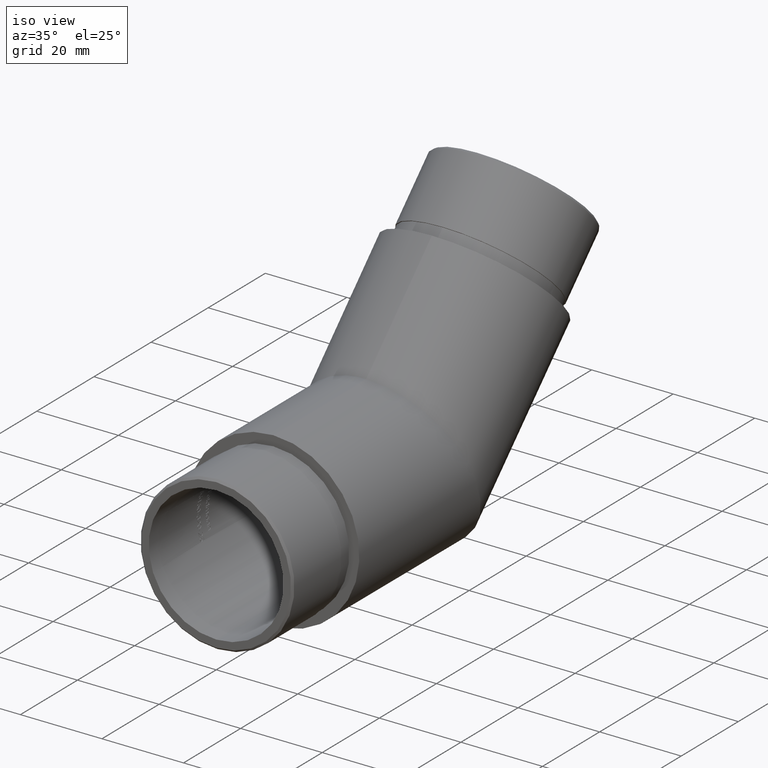
[diagram: clean part render]
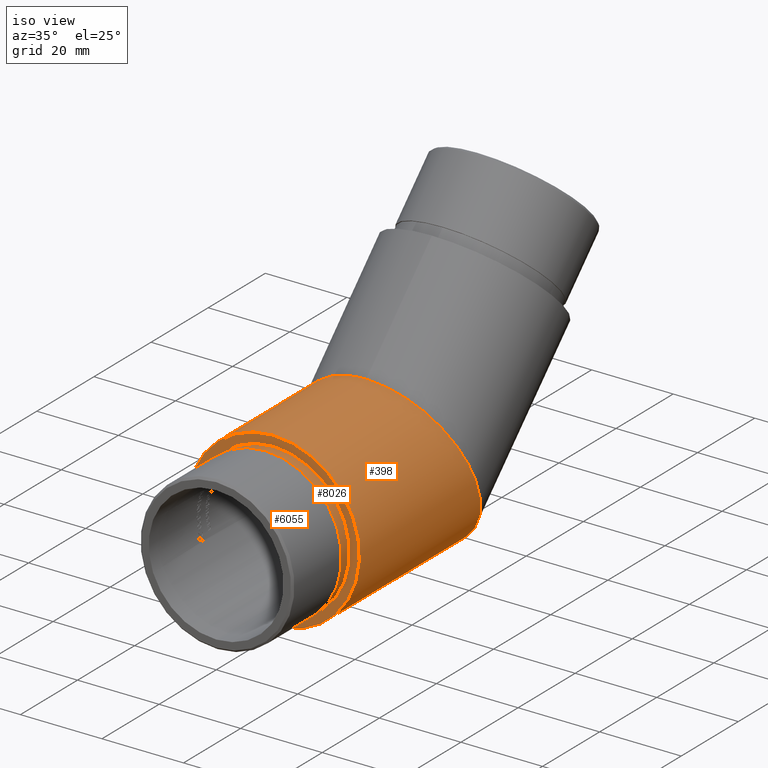
[diagram: same view with one multi-face feature highlighted, each face labeled with its STEP entity id]
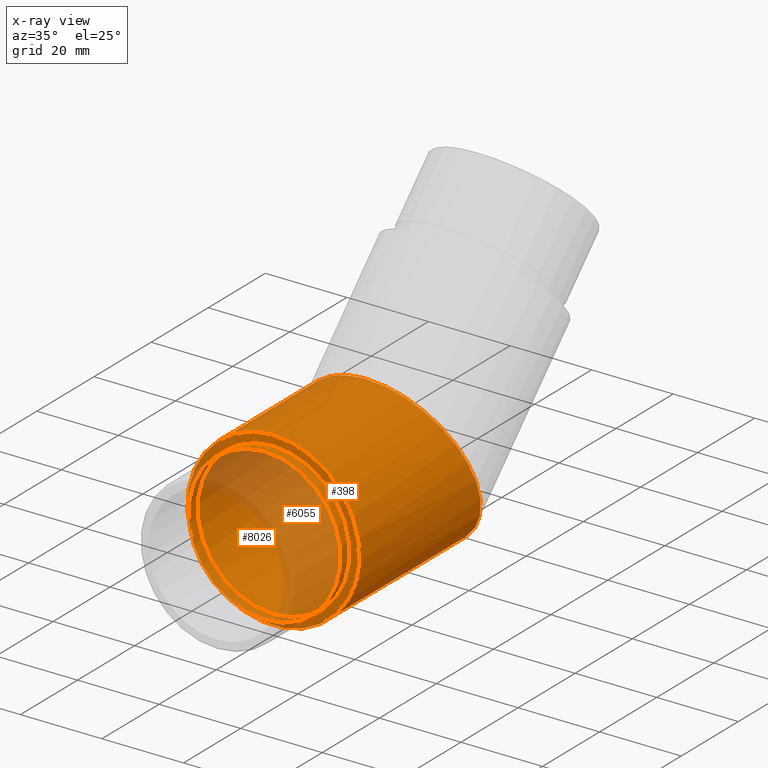
[diagram: x-ray of the same camera — body ghosted, the whole feature saturated]
A machine part, iso view. The highlighted faces form ONE feature: a stepped (counterbored) hole: 2 coaxial cylindrical walls of radii 18.65 -> 21.1 mm joined by 1 annular planar shoulder face(s). The faces share edges in the B-rep.
The next image is the same camera in x-ray: the body ghosted and the whole hole feature saturated, so the bore chain is visible through the body.
Their STEP definitions:
[1] entity #398 (Cylinder):
#88 = CARTESIAN_POINT ( 'NONE',  ( 0.0000000000000000000, 0.0000000000000000000, 21.09999999999999800 ) ) ;
#398 = ADVANCED_FACE ( 'NONE', ( #12951, #5512 ), #5992, .T. ) ;
#402 = VERTEX_POINT ( 'NONE', #5418 ) ;
#453 = CARTESIAN_POINT ( 'NONE',  ( -42.19999999999999600, 50.00000000000002100, -21.10000000000000100 ) ) ;
#1767 = EDGE_LOOP ( 'NONE', ( #12883 ) ) ;
#3586 = CARTESIAN_POINT ( 'NONE',  ( 42.19999999999999600, 50.00000000000002100, -21.09999999999999400 ) ) ;
#3635 =( BOUNDED_CURVE ( )  B_SPLINE_CURVE ( 3, ( #4728, #4819, #3586, #9964, #453, #7922, #10022 ),
 .UNSPECIFIED., .T., .F. ) 
 B_SPLINE_CURVE_WITH_KNOTS ( ( 4, 3, 4 ),
 ( 0.0000000000000000000, 3.141592653589793100, 6.283185307179586200 ),
 .UNSPECIFIED. ) 
 CURVE ( )  GEOMETRIC_REPRESENTATION_ITEM ( )  RATIONAL_B_SPLINE_CURVE ( ( 1.000000000000000000, 0.3333333333333333700, 0.3333333333333333700, 1.000000000000000000, 0.3333333333333333700, 0.3333333333333333700, 1.000000000000000000 ) ) 
 REPRESENTATION_ITEM ( '' )  );
#4092 = CARTESIAN_POINT ( 'NONE',  ( 0.0000000000000000000, 100.9399061660722900, 0.0000000000000000000 ) ) ;
#4728 = CARTESIAN_POINT ( 'NONE',  ( 0.0000000000000000000, 32.52018766785536000, 21.09999999999999800 ) ) ;
#4819 = CARTESIAN_POINT ( 'NONE',  ( 42.19999999999999600, 32.52018766785536000, 21.09999999999999800 ) ) ;
#5418 = CARTESIAN_POINT ( 'NONE',  ( 0.0000000000000000000, 32.52018766785536000, 21.09999999999999800 ) ) ;
#5512 = FACE_OUTER_BOUND ( 'NONE', #6821, .T. ) ;
#5992 = CYLINDRICAL_SURFACE ( 'NONE', #6636, 21.09999999999999800 ) ;
#6534 = ORIENTED_EDGE ( 'NONE', *, *, #9034, .F. ) ;
#6636 = AXIS2_PLACEMENT_3D ( 'NONE', #4092, #11310, #10260 ) ;
#6821 = EDGE_LOOP ( 'NONE', ( #6534 ) ) ;
#6863 = DIRECTION ( 'NONE',  ( 0.0000000000000000000, 1.000000000000000000, 0.0000000000000000000 ) ) ;
#7604 = CIRCLE ( 'NONE', #9923, 21.09999999999999800 ) ;
#7823 = VERTEX_POINT ( 'NONE', #88 ) ;
#7922 = CARTESIAN_POINT ( 'NONE',  ( -42.19999999999999600, 32.52018766785536000, 21.09999999999999800 ) ) ;
#9034 = EDGE_CURVE ( 'NONE', #402, #402, #3635, .T. ) ;
#9923 = AXIS2_PLACEMENT_3D ( 'NONE', #10040, #6863, #12115 ) ;
#9964 = CARTESIAN_POINT ( 'NONE',  ( 2.584004746200915400E-015, 50.00000000000001400, -21.09999999999999800 ) ) ;
#10022 = CARTESIAN_POINT ( 'NONE',  ( 0.0000000000000000000, 32.52018766785536000, 21.09999999999999800 ) ) ;
#10040 = CARTESIAN_POINT ( 'NONE',  ( 0.0000000000000000000, 0.0000000000000000000, 0.0000000000000000000 ) ) ;
#10260 = DIRECTION ( 'NONE',  ( 0.0000000000000000000, 0.0000000000000000000, -1.000000000000000000 ) ) ;
#11310 = DIRECTION ( 'NONE',  ( -0.0000000000000000000, -1.000000000000000000, -0.0000000000000000000 ) ) ;
#12115 = DIRECTION ( 'NONE',  ( 0.0000000000000000000, 0.0000000000000000000, 1.000000000000000000 ) ) ;
#12883 = ORIENTED_EDGE ( 'NONE', *, *, #13024, .T. ) ;
#12951 = FACE_OUTER_BOUND ( 'NONE', #1767, .T. ) ;
#13024 = EDGE_CURVE ( 'NONE', #7823, #7823, #7604, .T. ) ;
[2] entity #8026 (Cylinder):
#86 = CARTESIAN_POINT ( 'NONE',  ( 0.0000000000000000000, -3.000000000000000000, 0.0000000000000000000 ) ) ;
#171 = CARTESIAN_POINT ( 'NONE',  ( 0.0000000000000000000, 0.0000000000000000000, 18.64999999999999900 ) ) ;
#214 = DIRECTION ( 'NONE',  ( 0.0000000000000000000, 0.0000000000000000000, 1.000000000000000000 ) ) ;
#266 = DIRECTION ( 'NONE',  ( -0.0000000000000000000, 1.000000000000000000, -0.0000000000000000000 ) ) ;
#399 = DIRECTION ( 'NONE',  ( -0.0000000000000000000, -1.000000000000000000, -0.0000000000000000000 ) ) ;
#711 = EDGE_CURVE ( 'NONE', #4157, #4157, #891, .T. ) ;
#874 = VERTEX_POINT ( 'NONE', #2240 ) ;
#891 = CIRCLE ( 'NONE', #7351, 18.64999999999999900 ) ;
#1232 = DIRECTION ( 'NONE',  ( 0.0000000000000000000, -1.000000000000000000, 0.0000000000000000000 ) ) ;
#2048 = AXIS2_PLACEMENT_3D ( 'NONE', #86, #266, #214 ) ;
#2202 = FACE_OUTER_BOUND ( 'NONE', #10224, .T. ) ;
#2240 = CARTESIAN_POINT ( 'NONE',  ( 0.0000000000000000000, -3.000000000000000000, -18.64999999999999900 ) ) ;
#2539 = AXIS2_PLACEMENT_3D ( 'NONE', #8754, #1232, #8623 ) ;
#4157 = VERTEX_POINT ( 'NONE', #171 ) ;
#5638 = CARTESIAN_POINT ( 'NONE',  ( 0.0000000000000000000, 0.0000000000000000000, 0.0000000000000000000 ) ) ;
#7317 = EDGE_LOOP ( 'NONE', ( #11851 ) ) ;
#7351 = AXIS2_PLACEMENT_3D ( 'NONE', #5638, #399, #9911 ) ;
#7863 = CYLINDRICAL_SURFACE ( 'NONE', #2048, 18.64999999999999900 ) ;
#8026 = ADVANCED_FACE ( 'NONE', ( #2202, #9687 ), #7863, .T. ) ;
#8623 = DIRECTION ( 'NONE',  ( 0.0000000000000000000, 0.0000000000000000000, -1.000000000000000000 ) ) ;
#8754 = CARTESIAN_POINT ( 'NONE',  ( 0.0000000000000000000, -3.000000000000000000, 0.0000000000000000000 ) ) ;
#9687 = FACE_OUTER_BOUND ( 'NONE', #7317, .T. ) ;
#9771 = ORIENTED_EDGE ( 'NONE', *, *, #13370, .F. ) ;
#9911 = DIRECTION ( 'NONE',  ( 0.0000000000000000000, 0.0000000000000000000, 1.000000000000000000 ) ) ;
#10224 = EDGE_LOOP ( 'NONE', ( #9771 ) ) ;
#11243 = CIRCLE ( 'NONE', #2539, 18.64999999999999900 ) ;
#11851 = ORIENTED_EDGE ( 'NONE', *, *, #711, .T. ) ;
#13370 = EDGE_CURVE ( 'NONE', #874, #874, #11243, .T. ) ;
[3] entity #6055 (Plane):
#88 = CARTESIAN_POINT ( 'NONE',  ( 0.0000000000000000000, 0.0000000000000000000, 21.09999999999999800 ) ) ;
#171 = CARTESIAN_POINT ( 'NONE',  ( 0.0000000000000000000, 0.0000000000000000000, 18.64999999999999900 ) ) ;
#399 = DIRECTION ( 'NONE',  ( -0.0000000000000000000, -1.000000000000000000, -0.0000000000000000000 ) ) ;
#439 = FACE_OUTER_BOUND ( 'NONE', #4248, .T. ) ;
#711 = EDGE_CURVE ( 'NONE', #4157, #4157, #891, .T. ) ;
#891 = CIRCLE ( 'NONE', #7351, 18.64999999999999900 ) ;
#3262 = AXIS2_PLACEMENT_3D ( 'NONE', #9277, #4036, #5069 ) ;
#4036 = DIRECTION ( 'NONE',  ( 0.0000000000000000000, 1.000000000000000000, 0.0000000000000000000 ) ) ;
#4157 = VERTEX_POINT ( 'NONE', #171 ) ;
#4248 = EDGE_LOOP ( 'NONE', ( #8021 ) ) ;
#5069 = DIRECTION ( 'NONE',  ( 0.0000000000000000000, -0.0000000000000000000, 1.000000000000000000 ) ) ;
#5638 = CARTESIAN_POINT ( 'NONE',  ( 0.0000000000000000000, 0.0000000000000000000, 0.0000000000000000000 ) ) ;
#6025 = FACE_BOUND ( 'NONE', #6531, .T. ) ;
#6055 = ADVANCED_FACE ( 'NONE', ( #439, #6025 ), #11379, .F. ) ;
#6531 = EDGE_LOOP ( 'NONE', ( #13609 ) ) ;
#6863 = DIRECTION ( 'NONE',  ( 0.0000000000000000000, 1.000000000000000000, 0.0000000000000000000 ) ) ;
#7351 = AXIS2_PLACEMENT_3D ( 'NONE', #5638, #399, #9911 ) ;
#7604 = CIRCLE ( 'NONE', #9923, 21.09999999999999800 ) ;
#7823 = VERTEX_POINT ( 'NONE', #88 ) ;
#8021 = ORIENTED_EDGE ( 'NONE', *, *, #13024, .F. ) ;
#9277 = CARTESIAN_POINT ( 'NONE',  ( 0.0000000000000000000, 0.0000000000000000000, 0.0000000000000000000 ) ) ;
#9911 = DIRECTION ( 'NONE',  ( 0.0000000000000000000, 0.0000000000000000000, 1.000000000000000000 ) ) ;
#9923 = AXIS2_PLACEMENT_3D ( 'NONE', #10040, #6863, #12115 ) ;
#10040 = CARTESIAN_POINT ( 'NONE',  ( 0.0000000000000000000, 0.0000000000000000000, 0.0000000000000000000 ) ) ;
#11379 = PLANE ( 'NONE',  #3262 ) ;
#12115 = DIRECTION ( 'NONE',  ( 0.0000000000000000000, 0.0000000000000000000, 1.000000000000000000 ) ) ;
#13024 = EDGE_CURVE ( 'NONE', #7823, #7823, #7604, .T. ) ;
#13609 = ORIENTED_EDGE ( 'NONE', *, *, #711, .F. ) ;